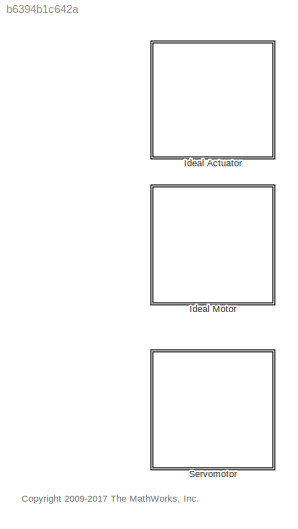
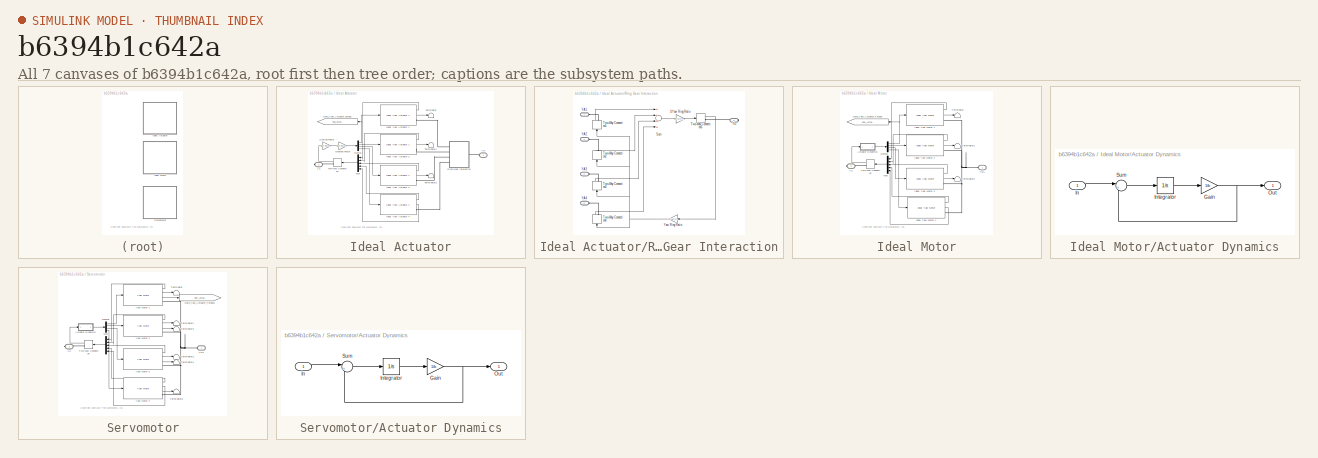
[diagram: thumbnail index - all 7 canvases of the model, root first then tree order]
MODEL slx_b6394b1c642a
KIND library
CONFIG AbsTol = auto
CONFIG EnableMultiTasking = on
CONFIG FixedStep = auto
CONFIG MaxStep = auto
CONFIG MinStep = auto
CONFIG RelTol = 1e-3
CONFIG SampleTimeConstraint = Unconstrained
CONFIG Solver = ode45
CONFIG SolverName = ode45
CONFIG StartTime = 0.0
CONFIG StopTime = 10.0
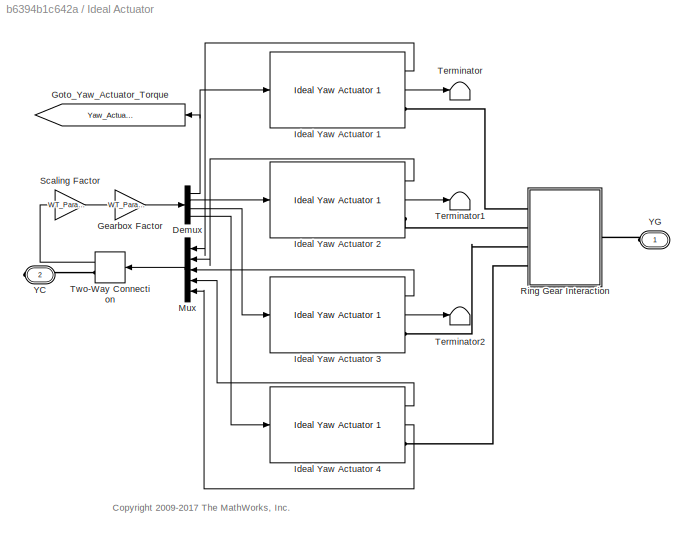
BLOCK [SubSystem] Ideal Actuator
  Ports = [0, 0, 0, 0, 0, 1, 1]
  RequestExecContextInheritance = off
  Variant = off
BLOCK [Demux] Ideal Actuator/Demux
  DisplayOption = bar
  Ports = [1, 4]
BLOCK [Gain] Ideal Actuator/Gearbox Factor
  Gain = WT_Params.Yaw_Actuator.p_gear_rato_step_1*WT_Params.Yaw_Actuator.p_gear_rato_step_2*WT_Params.Yaw_Actuator.p_gear_rato_step_3*WT_Params.Yaw_Actuator.p_gear_rato_step_4*(WT_Params.Yaw_Actuator.yaw_ring_diameter/WT_Params.Yaw_Actuator.yaw_gear_diameter)
  OutDataTypeStr = Inherit: Inherit via internal rule
  ParamDataTypeStr = Inherit: Inherit via internal rule
  SaturateOnIntegerOverflow = off
BLOCK [Goto] Ideal Actuator/Goto_Yaw_Actuator_Torque
  GotoTag = Yaw_Actuator_Torque
  TagVisibility = global
BLOCK [Reference] Ideal Actuator/Ideal Yaw Actuator 1  REF=Yaw_Ideal_Actuator_Lib/Ideal Yaw Actuator 1
  Ports = [1, 2, 0, 0, 0, 0, 1]
  SourceBlock = Yaw_Ideal_Actuator_Lib/Ideal Yaw Actuator 1
BLOCK [Reference] Ideal Actuator/Ideal Yaw Actuator 2  REF=Yaw_Ideal_Actuator_Lib/Ideal Yaw Actuator 1
  Ports = [1, 2, 0, 0, 0, 0, 1]
  SourceBlock = Yaw_Ideal_Actuator_Lib/Ideal Yaw Actuator 1
BLOCK [Reference] Ideal Actuator/Ideal Yaw Actuator 3  REF=Yaw_Ideal_Actuator_Lib/Ideal Yaw Actuator 1
  Ports = [1, 2, 0, 0, 0, 0, 1]
  SourceBlock = Yaw_Ideal_Actuator_Lib/Ideal Yaw Actuator 1
BLOCK [Reference] Ideal Actuator/Ideal Yaw Actuator 4  REF=Yaw_Ideal_Actuator_Lib/Ideal Yaw Actuator 1
  Ports = [1, 2, 0, 0, 0, 0, 1]
  SourceBlock = Yaw_Ideal_Actuator_Lib/Ideal Yaw Actuator 1
BLOCK [Mux] Ideal Actuator/Mux
  DisplayOption = bar
  Inputs = 5
  Ports = [5, 1]
BLOCK [SubSystem] Ideal Actuator/Ring Gear Interaction
  Ports = [0, 0, 0, 0, 0, 4, 1]
  RequestExecContextInheritance = off
  Variant = off
BLOCK [Gain] Ideal Actuator/Ring Gear Interaction/1//Yaw Ring Ratio
  Gain = 1/(WT_Params.Yaw_Actuator.yaw_gear_diameter/WT_Params.Yaw_Actuator.yaw_ring_diameter)
  OutDataTypeStr = Inherit: Inherit via internal rule
  ParamDataTypeStr = Inherit: Inherit via internal rule
  SaturateOnIntegerOverflow = off
BLOCK [Sum] Ideal Actuator/Ring Gear Interaction/Sum
  InputSameDT = off
  Inputs = ++++
  OutDataTypeStr = Inherit: Inherit via internal rule
  Ports = [4, 1]
  SaturateOnIntegerOverflow = off
BLOCK [TwoWayConnection] Ideal Actuator/Ring Gear Interaction/Two-Way Connection1
  Ports = [1, 1, 0, 0, 0, 0, 1]
BLOCK [TwoWayConnection] Ideal Actuator/Ring Gear Interaction/Two-Way Connection2
  Ports = [1, 1, 0, 0, 0, 0, 1]
BLOCK [TwoWayConnection] Ideal Actuator/Ring Gear Interaction/Two-Way Connection3
  Ports = [1, 1, 0, 0, 0, 0, 1]
BLOCK [TwoWayConnection] Ideal Actuator/Ring Gear Interaction/Two-Way Connection4
  Ports = [1, 1, 0, 0, 0, 0, 1]
BLOCK [TwoWayConnection] Ideal Actuator/Ring Gear Interaction/Two-Way Connection5
  Ports = [1, 1, 0, 0, 0, 0, 1]
BLOCK [PMIOPort] Ideal Actuator/Ring Gear Interaction/YA1
  Port = 1
  Side = Left
BLOCK [PMIOPort] Ideal Actuator/Ring Gear Interaction/YA2
  Port = 2
  Side = Left
BLOCK [PMIOPort] Ideal Actuator/Ring Gear Interaction/YA3
  Port = 4
  Side = Left
BLOCK [PMIOPort] Ideal Actuator/Ring Gear Interaction/YA4
  Port = 5
  Side = Left
BLOCK [PMIOPort] Ideal Actuator/Ring Gear Interaction/YG
  Port = 3
  Side = Right
BLOCK [Gain] Ideal Actuator/Ring Gear Interaction/Yaw Ring Ratio
  Gain = 1/(WT_Params.Yaw_Actuator.yaw_gear_diameter/WT_Params.Yaw_Actuator.yaw_ring_diameter)
  OutDataTypeStr = Inherit: Inherit via internal rule
  ParamDataTypeStr = Inherit: Inherit via internal rule
  SaturateOnIntegerOverflow = off
BLOCK [Gain] Ideal Actuator/Scaling Factor
  Gain = WT_Params.Yaw_Actuator.Ideal.scaling_factor
  OutDataTypeStr = Inherit: Inherit via internal rule
  ParamDataTypeStr = Inherit: Inherit via internal rule
  SaturateOnIntegerOverflow = off
BLOCK [Terminator] Ideal Actuator/Terminator
BLOCK [Terminator] Ideal Actuator/Terminator1
BLOCK [Terminator] Ideal Actuator/Terminator2
BLOCK [TwoWayConnection] Ideal Actuator/Two-Way Connection
  Ports = [1, 1, 0, 0, 0, 0, 1]
BLOCK [PMIOPort] Ideal Actuator/YC
  Port = 2
  Side = Right
  Tag = PMCPort
BLOCK [PMIOPort] Ideal Actuator/YG
  Port = 1
  Side = Left
  Tag = PMCPort
BLOCK [SubSystem] Ideal Motor
  Ports = [0, 0, 0, 0, 0, 1, 1]
  RequestExecContextInheritance = off
  Variant = off
BLOCK [SubSystem] Ideal Motor/Actuator Dynamics
  Ports = [1, 1]
  RequestExecContextInheritance = off
  Variant = off
BLOCK [Gain] Ideal Motor/Actuator Dynamics/Gain
  Gain = 1/b
  OutDataTypeStr = Inherit: Inherit via internal rule
  ParamDataTypeStr = Inherit: Inherit via internal rule
  SaturateOnIntegerOverflow = off
BLOCK [Inport] Ideal Motor/Actuator Dynamics/In
  IconDisplay = Port number
BLOCK [Integrator] Ideal Motor/Actuator Dynamics/Integrator
  InitialCondition = x_initial
  Ports = [1, 1]
BLOCK [Outport] Ideal Motor/Actuator Dynamics/Out
  IconDisplay = Port number
BLOCK [Sum] Ideal Motor/Actuator Dynamics/Sum
  IconShape = round
  Inputs = |+-
  Ports = [2, 1]
BLOCK [Demux] Ideal Motor/Demux
  DisplayOption = bar
  Ports = [1, 4]
BLOCK [Goto] Ideal Motor/Goto_Yaw_Actuator_Torque
  GotoTag = Yaw_Actuator_Torque
  TagVisibility = global
BLOCK [Reference] Ideal Motor/Ideal Yaw Motor 1  REF=Yaw_Ideal_Motor_Lib/Ideal Yaw Motor
  Ports = [1, 2, 0, 0, 0, 0, 1]
  SourceBlock = Yaw_Ideal_Motor_Lib/Ideal Yaw Motor
BLOCK [Reference] Ideal Motor/Ideal Yaw Motor 2  REF=Yaw_Ideal_Motor_Lib/Ideal Yaw Motor
  Ports = [1, 2, 0, 0, 0, 0, 1]
  SourceBlock = Yaw_Ideal_Motor_Lib/Ideal Yaw Motor
BLOCK [Reference] Ideal Motor/Ideal Yaw Motor 3  REF=Yaw_Ideal_Motor_Lib/Ideal Yaw Motor
  Ports = [1, 2, 0, 0, 0, 0, 1]
  SourceBlock = Yaw_Ideal_Motor_Lib/Ideal Yaw Motor
BLOCK [Reference] Ideal Motor/Ideal Yaw Motor 4  REF=Yaw_Ideal_Motor_Lib/Ideal Yaw Motor
  Ports = [1, 2, 0, 0, 0, 0, 1]
  SourceBlock = Yaw_Ideal_Motor_Lib/Ideal Yaw Motor
BLOCK [Mux] Ideal Motor/Mux
  DisplayOption = bar
  Inputs = 5
  Ports = [5, 1]
BLOCK [Terminator] Ideal Motor/Terminator
BLOCK [Terminator] Ideal Motor/Terminator1
BLOCK [Terminator] Ideal Motor/Terminator2
BLOCK [TwoWayConnection] Ideal Motor/Two-Way Connection
  Ports = [1, 1, 0, 0, 0, 0, 1]
BLOCK [PMIOPort] Ideal Motor/YC
  Port = 2
  Side = Right
  Tag = PMCPort
BLOCK [PMIOPort] Ideal Motor/YG1
  Port = 1
  Side = Left
  Tag = PMCPort
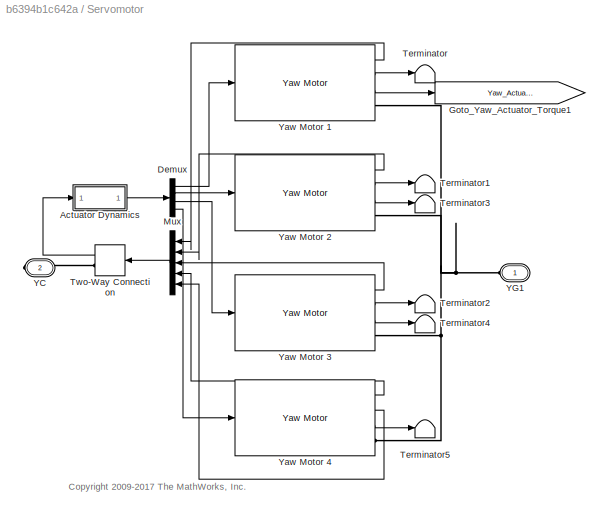
BLOCK [SubSystem] Servomotor
  Ports = [0, 0, 0, 0, 0, 1, 1]
  RequestExecContextInheritance = off
  Variant = off
BLOCK [SubSystem] Servomotor/Actuator Dynamics
  Ports = [1, 1]
  RequestExecContextInheritance = off
  Variant = off
BLOCK [Gain] Servomotor/Actuator Dynamics/Gain
  Gain = 1/b
  OutDataTypeStr = Inherit: Inherit via internal rule
  ParamDataTypeStr = Inherit: Inherit via internal rule
  SaturateOnIntegerOverflow = off
BLOCK [Inport] Servomotor/Actuator Dynamics/In
  IconDisplay = Port number
BLOCK [Integrator] Servomotor/Actuator Dynamics/Integrator
  InitialCondition = x_initial
  Ports = [1, 1]
BLOCK [Outport] Servomotor/Actuator Dynamics/Out
  IconDisplay = Port number
BLOCK [Sum] Servomotor/Actuator Dynamics/Sum
  IconShape = round
  Inputs = |+-
  Ports = [2, 1]
BLOCK [Demux] Servomotor/Demux
  DisplayOption = bar
  Ports = [1, 4]
BLOCK [Goto] Servomotor/Goto_Yaw_Actuator_Torque1
  GotoTag = Yaw_Actuator_Torque
  TagVisibility = global
BLOCK [Mux] Servomotor/Mux
  DisplayOption = bar
  Inputs = 5
  Ports = [5, 1]
BLOCK [Terminator] Servomotor/Terminator
BLOCK [Terminator] Servomotor/Terminator1
BLOCK [Terminator] Servomotor/Terminator2
BLOCK [Terminator] Servomotor/Terminator3
BLOCK [Terminator] Servomotor/Terminator4
BLOCK [Terminator] Servomotor/Terminator5
BLOCK [TwoWayConnection] Servomotor/Two-Way Connection
  Ports = [1, 1, 0, 0, 0, 0, 1]
BLOCK [PMIOPort] Servomotor/YC
  Port = 2
  Side = Right
  Tag = PMCPort
BLOCK [PMIOPort] Servomotor/YG1
  Port = 1
  Side = Left
  Tag = PMCPort
BLOCK [Reference] Servomotor/Yaw Motor 1  REF=Yaw_Motor_Lib/Yaw Motor
  Ports = [1, 3, 0, 0, 0, 0, 1]
  SourceBlock = Yaw_Motor_Lib/Yaw Motor
BLOCK [Reference] Servomotor/Yaw Motor 2  REF=Yaw_Motor_Lib/Yaw Motor
  Ports = [1, 3, 0, 0, 0, 0, 1]
  SourceBlock = Yaw_Motor_Lib/Yaw Motor
BLOCK [Reference] Servomotor/Yaw Motor 3  REF=Yaw_Motor_Lib/Yaw Motor
  Ports = [1, 3, 0, 0, 0, 0, 1]
  SourceBlock = Yaw_Motor_Lib/Yaw Motor
BLOCK [Reference] Servomotor/Yaw Motor 4  REF=Yaw_Motor_Lib/Yaw Motor
  Ports = [1, 3, 0, 0, 0, 0, 1]
  SourceBlock = Yaw_Motor_Lib/Yaw Motor
ANNOTATION (root): <copyright redacted>
ANNOTATION Ideal Actuator: <copyright redacted>
ANNOTATION Ideal Motor: <copyright redacted>
ANNOTATION Servomotor: <copyright redacted>
NET Ideal Actuator/Demux:1 -> Ideal Actuator/Goto_Yaw_Actuator_Torque:1, Ideal Actuator/Ideal Yaw Actuator 1:1
LINE Ideal Actuator/Demux:2 -> Ideal Actuator/Ideal Yaw Actuator 2:1
LINE Ideal Actuator/Demux:3 -> Ideal Actuator/Ideal Yaw Actuator 3:1
LINE Ideal Actuator/Demux:4 -> Ideal Actuator/Ideal Yaw Actuator 4:1
LINE Ideal Actuator/Gearbox Factor:1 -> Ideal Actuator/Demux:1
LINE Ideal Actuator/Ideal Yaw Actuator 1:1 -> Ideal Actuator/Mux:1
LINE Ideal Actuator/Ideal Yaw Actuator 1:2 -> Ideal Actuator/Terminator:1
LINE Ideal Actuator/Ideal Yaw Actuator 2:1 -> Ideal Actuator/Mux:2
LINE Ideal Actuator/Ideal Yaw Actuator 2:2 -> Ideal Actuator/Terminator1:1
LINE Ideal Actuator/Ideal Yaw Actuator 3:1 -> Ideal Actuator/Mux:3
LINE Ideal Actuator/Ideal Yaw Actuator 3:2 -> Ideal Actuator/Terminator2:1
LINE Ideal Actuator/Ideal Yaw Actuator 4:1 -> Ideal Actuator/Mux:4
LINE Ideal Actuator/Ideal Yaw Actuator 4:2 -> Ideal Actuator/Mux:5
LINE Ideal Actuator/Mux:1 -> Ideal Actuator/Two-Way Connection:1
LINE Ideal Actuator/Ring Gear Interaction/1//Yaw Ring Ratio:1 -> Ideal Actuator/Ring Gear Interaction/Two-Way Connection5:1
LINE Ideal Actuator/Ring Gear Interaction/Sum:1 -> Ideal Actuator/Ring Gear Interaction/1//Yaw Ring Ratio:1
LINE Ideal Actuator/Ring Gear Interaction/Two-Way Connection1:1 -> Ideal Actuator/Ring Gear Interaction/Sum:1
LINE Ideal Actuator/Ring Gear Interaction/Two-Way Connection2:1 -> Ideal Actuator/Ring Gear Interaction/Sum:2
LINE Ideal Actuator/Ring Gear Interaction/Two-Way Connection3:1 -> Ideal Actuator/Ring Gear Interaction/Sum:3
LINE Ideal Actuator/Ring Gear Interaction/Two-Way Connection4:1 -> Ideal Actuator/Ring Gear Interaction/Sum:4
LINE Ideal Actuator/Ring Gear Interaction/Two-Way Connection5:1 -> Ideal Actuator/Ring Gear Interaction/Yaw Ring Ratio:1
NET Ideal Actuator/Ring Gear Interaction/Yaw Ring Ratio:1 -> Ideal Actuator/Ring Gear Interaction/Two-Way Connection1:1, Ideal Actuator/Ring Gear Interaction/Two-Way Connection2:1, Ideal Actuator/Ring Gear Interaction/Two-Way Connection3:1, Ideal Actuator/Ring Gear Interaction/Two-Way Connection4:1
LINE Ideal Actuator/Scaling Factor:1 -> Ideal Actuator/Gearbox Factor:1
LINE Ideal Actuator/Two-Way Connection:1 -> Ideal Actuator/Scaling Factor:1
NET Ideal Motor/Actuator Dynamics/Gain:1 -> Ideal Motor/Actuator Dynamics/Out:1, Ideal Motor/Actuator Dynamics/Sum:2
LINE Ideal Motor/Actuator Dynamics/In:1 -> Ideal Motor/Actuator Dynamics/Sum:1
LINE Ideal Motor/Actuator Dynamics/Integrator:1 -> Ideal Motor/Actuator Dynamics/Gain:1
LINE Ideal Motor/Actuator Dynamics/Sum:1 -> Ideal Motor/Actuator Dynamics/Integrator:1
LINE Ideal Motor/Actuator Dynamics:1 -> Ideal Motor/Demux:1
NET Ideal Motor/Demux:1 -> Ideal Motor/Goto_Yaw_Actuator_Torque:1, Ideal Motor/Ideal Yaw Motor 1:1
LINE Ideal Motor/Demux:2 -> Ideal Motor/Ideal Yaw Motor 2:1
LINE Ideal Motor/Demux:3 -> Ideal Motor/Ideal Yaw Motor 3:1
LINE Ideal Motor/Demux:4 -> Ideal Motor/Ideal Yaw Motor 4:1
LINE Ideal Motor/Ideal Yaw Motor 1:1 -> Ideal Motor/Mux:1
LINE Ideal Motor/Ideal Yaw Motor 1:2 -> Ideal Motor/Terminator:1
LINE Ideal Motor/Ideal Yaw Motor 2:1 -> Ideal Motor/Mux:2
LINE Ideal Motor/Ideal Yaw Motor 2:2 -> Ideal Motor/Terminator1:1
LINE Ideal Motor/Ideal Yaw Motor 3:1 -> Ideal Motor/Mux:3
LINE Ideal Motor/Ideal Yaw Motor 3:2 -> Ideal Motor/Terminator2:1
LINE Ideal Motor/Ideal Yaw Motor 4:1 -> Ideal Motor/Mux:4
LINE Ideal Motor/Ideal Yaw Motor 4:2 -> Ideal Motor/Mux:5
LINE Ideal Motor/Mux:1 -> Ideal Motor/Two-Way Connection:1
LINE Ideal Motor/Two-Way Connection:1 -> Ideal Motor/Actuator Dynamics:1
NET Servomotor/Actuator Dynamics/Gain:1 -> Servomotor/Actuator Dynamics/Out:1, Servomotor/Actuator Dynamics/Sum:2
LINE Servomotor/Actuator Dynamics/In:1 -> Servomotor/Actuator Dynamics/Sum:1
LINE Servomotor/Actuator Dynamics/Integrator:1 -> Servomotor/Actuator Dynamics/Gain:1
LINE Servomotor/Actuator Dynamics/Sum:1 -> Servomotor/Actuator Dynamics/Integrator:1
LINE Servomotor/Actuator Dynamics:1 -> Servomotor/Demux:1
LINE Servomotor/Demux:1 -> Servomotor/Yaw Motor 1:1
LINE Servomotor/Demux:2 -> Servomotor/Yaw Motor 2:1
LINE Servomotor/Demux:3 -> Servomotor/Yaw Motor 3:1
LINE Servomotor/Demux:4 -> Servomotor/Yaw Motor 4:1
LINE Servomotor/Mux:1 -> Servomotor/Two-Way Connection:1
LINE Servomotor/Two-Way Connection:1 -> Servomotor/Actuator Dynamics:1
LINE Servomotor/Yaw Motor 1:1 -> Servomotor/Mux:1
LINE Servomotor/Yaw Motor 1:2 -> Servomotor/Terminator:1
LINE Servomotor/Yaw Motor 1:3 -> Servomotor/Goto_Yaw_Actuator_Torque1:1
LINE Servomotor/Yaw Motor 2:1 -> Servomotor/Mux:2
LINE Servomotor/Yaw Motor 2:2 -> Servomotor/Terminator1:1
LINE Servomotor/Yaw Motor 2:3 -> Servomotor/Terminator3:1
LINE Servomotor/Yaw Motor 3:1 -> Servomotor/Mux:3
LINE Servomotor/Yaw Motor 3:2 -> Servomotor/Terminator2:1
LINE Servomotor/Yaw Motor 3:3 -> Servomotor/Terminator4:1
LINE Servomotor/Yaw Motor 4:1 -> Servomotor/Mux:4
LINE Servomotor/Yaw Motor 4:2 -> Servomotor/Mux:5
LINE Servomotor/Yaw Motor 4:3 -> Servomotor/Terminator5:1
PLINE Ideal Actuator/Ideal Yaw Actuator 1:RConn1 -- Ideal Actuator/Ring Gear Interaction:LConn1
PLINE Ideal Actuator/Ideal Yaw Actuator 2:RConn1 -- Ideal Actuator/Ring Gear Interaction:LConn2
PLINE Ideal Actuator/Ideal Yaw Actuator 3:RConn1 -- Ideal Actuator/Ring Gear Interaction:LConn3
PLINE Ideal Actuator/Ideal Yaw Actuator 4:RConn1 -- Ideal Actuator/Ring Gear Interaction:LConn4
PLINE Ideal Actuator/Ring Gear Interaction/Two-Way Connection1:RConn1 -- Ideal Actuator/Ring Gear Interaction/YA1:RConn1
PLINE Ideal Actuator/Ring Gear Interaction/Two-Way Connection2:RConn1 -- Ideal Actuator/Ring Gear Interaction/YA2:RConn1
PLINE Ideal Actuator/Ring Gear Interaction/Two-Way Connection3:RConn1 -- Ideal Actuator/Ring Gear Interaction/YA3:RConn1
PLINE Ideal Actuator/Ring Gear Interaction/Two-Way Connection4:RConn1 -- Ideal Actuator/Ring Gear Interaction/YA4:RConn1
PLINE Ideal Actuator/Ring Gear Interaction/Two-Way Connection5:RConn1 -- Ideal Actuator/Ring Gear Interaction/YG:RConn1
PLINE Ideal Actuator/Ring Gear Interaction:RConn1 -- Ideal Actuator/YG:RConn1
PLINE Ideal Actuator/Two-Way Connection:RConn1 -- Ideal Actuator/YC:RConn1
PNET net1: Ideal Motor/Ideal Yaw Motor 1:RConn1 -- Ideal Motor/Ideal Yaw Motor 2:RConn1 -- Ideal Motor/Ideal Yaw Motor 3:RConn1 -- Ideal Motor/Ideal Yaw Motor 4:RConn1 -- Ideal Motor/YG1:RConn1
PLINE Ideal Motor/Two-Way Connection:RConn1 -- Ideal Motor/YC:RConn1
PLINE Servomotor/Two-Way Connection:RConn1 -- Servomotor/YC:RConn1
PNET net2: Servomotor/YG1:RConn1 -- Servomotor/Yaw Motor 1:RConn1 -- Servomotor/Yaw Motor 2:RConn1 -- Servomotor/Yaw Motor 3:RConn1 -- Servomotor/Yaw Motor 4:RConn1
note: NET lines group one-source signal fan-out (src -> all destinations, sorted); 1:1 wires keep LINE; PNET lines group multi-terminal physical nets as a canonical sorted terminal list (undirected conserving connections); 2-terminal nets keep the pairwise PLINE form
